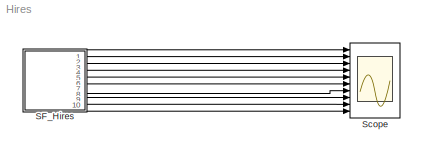
MODEL Hires
KIND model
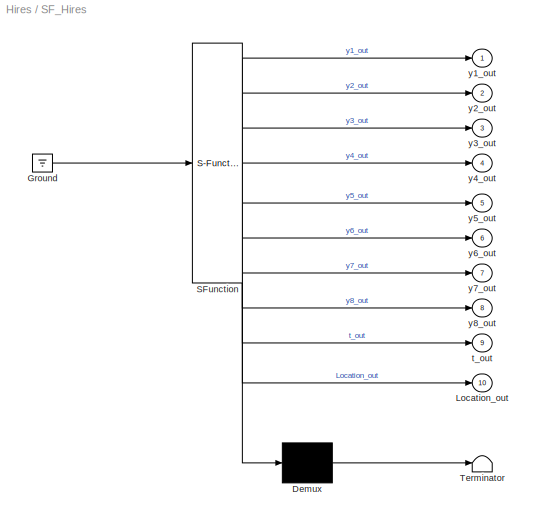
BLOCK [SubSystem] SF_Hires
  ErrorFcn = Stateflow.Translate.translate
  PermitHierarchicalResolution = ExplicitOnly
  Ports = [0, 10]
  RequestExecContextInheritance = off
  SFBlockType = Chart
  SID = 1
  TreatAsAtomicUnit = on
BLOCK [Demux] SF_Hires/ Demux 
  Outputs = 1
  Ports = [1, 1]
  SID = 1::88
BLOCK [Ground] SF_Hires/ Ground 
  SID = 1::90
BLOCK [S-Function] SF_Hires/ SFunction 
  EnableBusSupport = off
  FunctionName = sf_sfun
  PortCounts = [1 11]
  Ports = [1, 11]
  SFcnIsStateOwnerBlock = off
  SFunctionDeploymentMode = off
  SID = 1::87
  Tag = Stateflow S-Function 3
BLOCK [Terminator] SF_Hires/ Terminator 
  SID = 1::89
BLOCK [Outport] SF_Hires/Location_out
  IconDisplay = Port number
  Port = 10
  SID = 1::86
BLOCK [Outport] SF_Hires/t_out
  IconDisplay = Port number
  Port = 9
  SID = 1::85
BLOCK [Outport] SF_Hires/y1_out
  IconDisplay = Port number
  SID = 1::77
BLOCK [Outport] SF_Hires/y2_out
  IconDisplay = Port number
  Port = 2
  SID = 1::78
BLOCK [Outport] SF_Hires/y3_out
  IconDisplay = Port number
  Port = 3
  SID = 1::79
BLOCK [Outport] SF_Hires/y4_out
  IconDisplay = Port number
  Port = 4
  SID = 1::80
BLOCK [Outport] SF_Hires/y5_out
  IconDisplay = Port number
  Port = 5
  SID = 1::81
BLOCK [Outport] SF_Hires/y6_out
  IconDisplay = Port number
  Port = 6
  SID = 1::82
BLOCK [Outport] SF_Hires/y7_out
  IconDisplay = Port number
  Port = 7
  SID = 1::83
BLOCK [Outport] SF_Hires/y8_out
  IconDisplay = Port number
  Port = 8
  SID = 1::84
BLOCK [Scope] Scope
  Floating = off
  NumInputPorts = 10
  Ports = [10]
  SID = 2
  ScopeSpecificationString = C++SS(StrPVP('Location','[188, 365, 512, 604]'),StrPVP('Open','off'),MxPVP('AxesTitles',54,'struct(''axes1'',''%<SignalLabel>'',''axes2'',''%<SignalLabel>'',''axes3'',''%<SignalLabel>'',''axes4'',''%<SignalLabel>'',''axes5'',''%<SignalLabel>'',''axes6'',''%<SignalLabel>'',''axes7'',''%<SignalLabel>'',''axes8'',''%<SignalLabel>'',''axes9'',''%<SignalLabel>'',''axes10'',''%<SignalLabel>'')'),StrPVP(...<+152ch>
LINE SF_Hires/ Demux :1 -> SF_Hires/ Terminator :1
LINE SF_Hires/ Ground :1 -> SF_Hires/ SFunction :1
LINE SF_Hires/ SFunction :1 -> SF_Hires/ Demux :1
LINE SF_Hires/ SFunction :10 -> SF_Hires/t_out:1
LINE SF_Hires/ SFunction :11 -> SF_Hires/Location_out:1
LINE SF_Hires/ SFunction :2 -> SF_Hires/y1_out:1
LINE SF_Hires/ SFunction :3 -> SF_Hires/y2_out:1
LINE SF_Hires/ SFunction :4 -> SF_Hires/y3_out:1
LINE SF_Hires/ SFunction :5 -> SF_Hires/y4_out:1
LINE SF_Hires/ SFunction :6 -> SF_Hires/y5_out:1
LINE SF_Hires/ SFunction :7 -> SF_Hires/y6_out:1
LINE SF_Hires/ SFunction :8 -> SF_Hires/y7_out:1
LINE SF_Hires/ SFunction :9 -> SF_Hires/y8_out:1
LINE SF_Hires:1 -> Scope:1
LINE SF_Hires:10 -> Scope:10
LINE SF_Hires:2 -> Scope:2
LINE SF_Hires:3 -> Scope:3
LINE SF_Hires:4 -> Scope:4
LINE SF_Hires:5 -> Scope:5
LINE SF_Hires:6 -> Scope:6
LINE SF_Hires:7 -> Scope:7
LINE SF_Hires:8 -> Scope:8
LINE SF_Hires:9 -> Scope:9
CHART SF_Hires states=1 transitions=1
  STATE_LABEL 'always\\ndu:\\ny1_dot = -1.71 * y1 + 0.43 * y2 + 8.32 * y3 + 0.0007;\\ny2_dot = 1.71 * y1 - 8.75 * y2;\\ny3_dot = -10.03 * y3 + 0.43 * y4 + 0.035 * y5;\\ny4_dot = 8.32 * y2 + 1.71 * y3 - 1.12 * y4;\\ny5_dot = -1.745 * y5 + 0.43 * y6 + 0.43 * y7;\\ny6_dot = -280.0 * y6 * y8 + 0.69 * y4 + 1.71 * y5 - 0.43 * y6 + 0.69 * y7;\\ny7_dot = 280.0 * y6 * y8 - 1.81 * y7;\\ny8_dot = -280.0 * y6 * y8 + 1.81 * y7;\\nt_do...<+132ch>'
